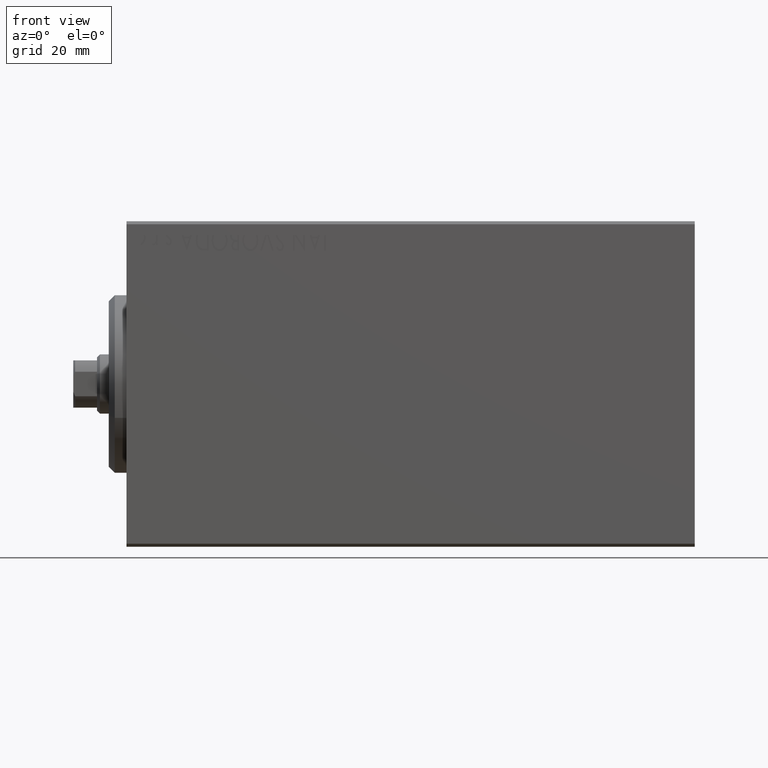
[diagram: clean part render]
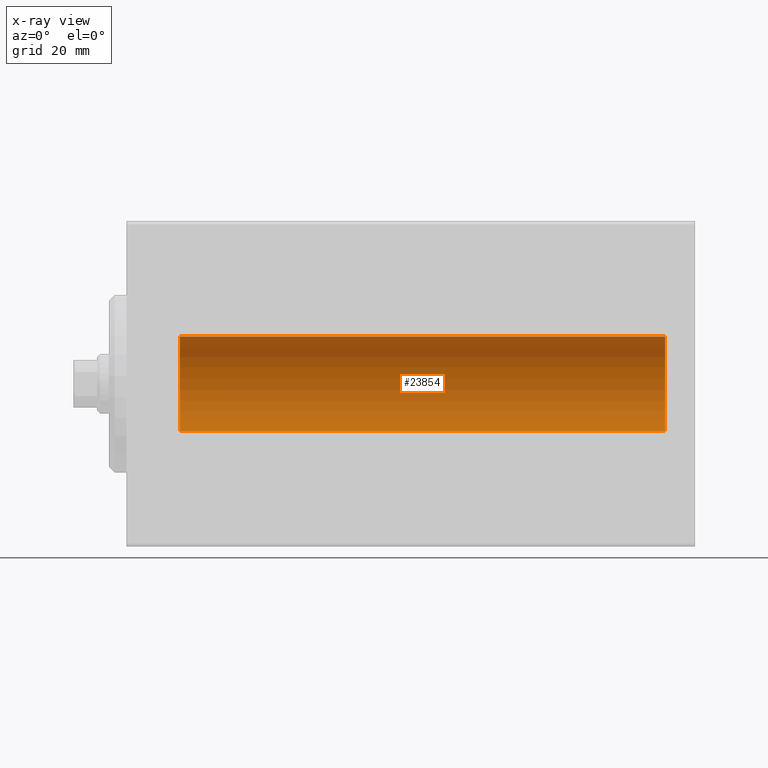
[diagram: x-ray — body ghosted, one internal face saturated and labeled with its STEP entity id]
A machine part, front view, then the same camera in x-ray: the body is ghosted and one INTERNAL B-rep face — a face not visible from any outside direction — is saturated and labeled: STEP entity #23854.
In plain terms, the highlighted cylindrical surface (partial cylindrical patch) has radius 8 mm, axis along (-1, -0, -0).
Its self-contained STEP definition (entity closure, byte-faithful):
#128 = EDGE_CURVE ( 'NONE', #32913, #38903, #12748, .T. ) ;
#2883 = VECTOR ( 'NONE', #7872, 1000.000000000000000 ) ;
#4098 = DIRECTION ( 'NONE',  ( -1.000000000000000000, 0.000000000000000000, 0.000000000000000000 ) ) ;
#4960 = FACE_OUTER_BOUND ( 'NONE', #32824, .T. ) ;
#5345 = EDGE_CURVE ( 'NONE', #12283, #17194, #37002, .T. ) ;
#7701 = DIRECTION ( 'NONE',  ( -1.000000000000000000, 0.000000000000000000, 0.000000000000000000 ) ) ;
#7872 = DIRECTION ( 'NONE',  ( -1.000000000000000000, -0.000000000000000000, -0.000000000000000000 ) ) ;
#9467 = ORIENTED_EDGE ( 'NONE', *, *, #128, .T. ) ;
#11633 = CARTESIAN_POINT ( 'NONE',  ( 91.00000000000000000, 0.000000000000000000, 7.999999999999998224 ) ) ;
#12203 = VECTOR ( 'NONE', #23968, 1000.000000000000000 ) ;
#12283 = VERTEX_POINT ( 'NONE', #39647 ) ;
#12629 = CARTESIAN_POINT ( 'NONE',  ( 91.00000000000000000, 9.797174393178823685E-16, -7.999999999999998224 ) ) ;
#12748 = CIRCLE ( 'NONE', #36171, 7.999999999999998224 ) ;
#13691 = CARTESIAN_POINT ( 'NONE',  ( 9.000000000000007105, 0.000000000000000000, 0.000000000000000000 ) ) ;
#14301 = LINE ( 'NONE', #11633, #2883 ) ;
#16419 = AXIS2_PLACEMENT_3D ( 'NONE', #35167, #4098, #18510 ) ;
#17194 = VERTEX_POINT ( 'NONE', #12629 ) ;
#17294 = CARTESIAN_POINT ( 'NONE',  ( 9.000000000000007105, 0.000000000000000000, 7.999999999999998224 ) ) ;
#18261 = DIRECTION ( 'NONE',  ( -1.000000000000000000, -0.000000000000000000, -0.000000000000000000 ) ) ;
#18510 = DIRECTION ( 'NONE',  ( 0.000000000000000000, 0.000000000000000000, 1.000000000000000000 ) ) ;
#20213 = LINE ( 'NONE', #40863, #12203 ) ;
#21608 = CYLINDRICAL_SURFACE ( 'NONE', #25602, 7.999999999999998224 ) ;
#23854 = ADVANCED_FACE ( 'NONE', ( #4960 ), #21608, .F. ) ;
#23968 = DIRECTION ( 'NONE',  ( -1.000000000000000000, -0.000000000000000000, -0.000000000000000000 ) ) ;
#25602 = AXIS2_PLACEMENT_3D ( 'NONE', #32257, #18261, #42251 ) ;
#25920 = EDGE_CURVE ( 'NONE', #17194, #38903, #20213, .T. ) ;
#27225 = DIRECTION ( 'NONE',  ( 0.000000000000000000, 0.000000000000000000, 1.000000000000000000 ) ) ;
#30300 = ORIENTED_EDGE ( 'NONE', *, *, #5345, .F. ) ;
#32257 = CARTESIAN_POINT ( 'NONE',  ( 91.00000000000000000, 0.000000000000000000, 0.000000000000000000 ) ) ;
#32824 = EDGE_LOOP ( 'NONE', ( #33658, #30300, #38405, #9467 ) ) ;
#32913 = VERTEX_POINT ( 'NONE', #17294 ) ;
#33658 = ORIENTED_EDGE ( 'NONE', *, *, #25920, .F. ) ;
#35167 = CARTESIAN_POINT ( 'NONE',  ( 91.00000000000000000, 0.000000000000000000, 0.000000000000000000 ) ) ;
#36171 = AXIS2_PLACEMENT_3D ( 'NONE', #13691, #7701, #27225 ) ;
#36328 = CARTESIAN_POINT ( 'NONE',  ( 9.000000000000007105, 9.797174393178823685E-16, -7.999999999999998224 ) ) ;
#37002 = CIRCLE ( 'NONE', #16419, 7.999999999999998224 ) ;
#38405 = ORIENTED_EDGE ( 'NONE', *, *, #41857, .T. ) ;
#38903 = VERTEX_POINT ( 'NONE', #36328 ) ;
#39647 = CARTESIAN_POINT ( 'NONE',  ( 91.00000000000000000, 0.000000000000000000, 7.999999999999998224 ) ) ;
#40863 = CARTESIAN_POINT ( 'NONE',  ( 91.00000000000000000, 9.797174393178823685E-16, -7.999999999999998224 ) ) ;
#41857 = EDGE_CURVE ( 'NONE', #12283, #32913, #14301, .T. ) ;
#42251 = DIRECTION ( 'NONE',  ( 0.000000000000000000, 0.000000000000000000, 1.000000000000000000 ) ) ;